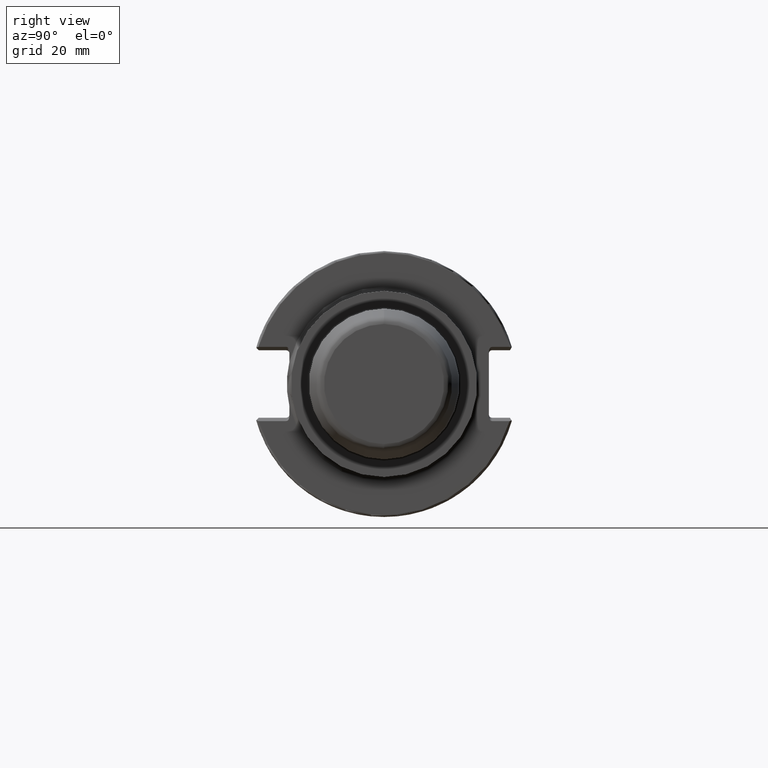
[diagram: clean part render]
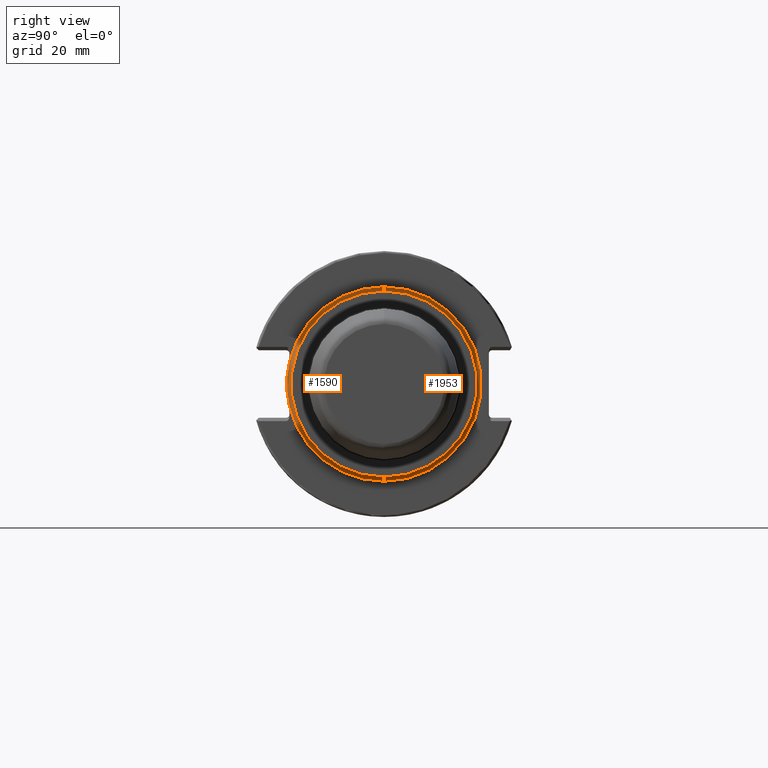
[diagram: same view with one multi-face feature highlighted, each face labeled with its STEP entity id]
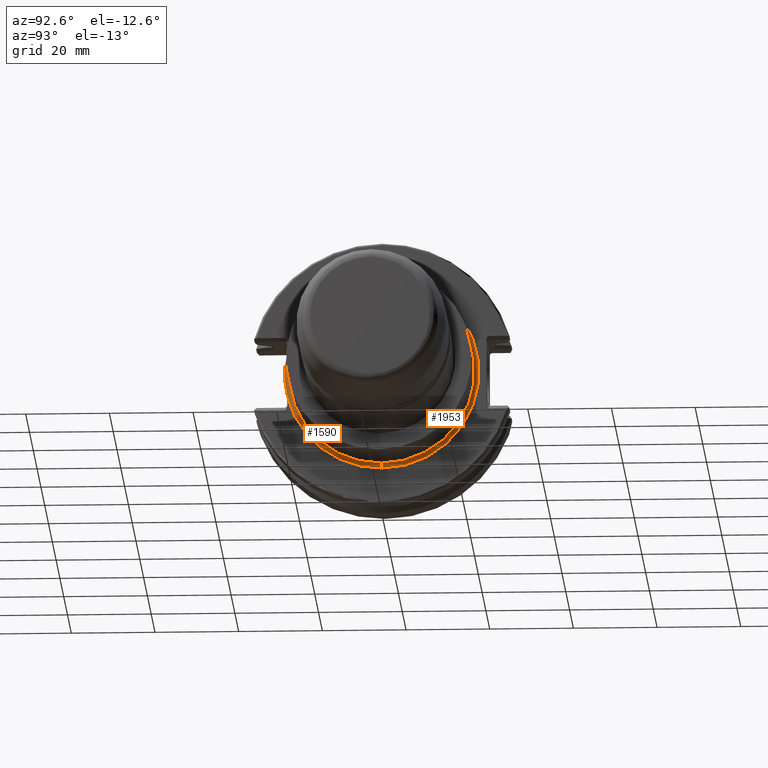
[diagram: same view with one multi-face feature highlighted, each face labeled with its STEP entity id]
A machine part, right view. The highlighted faces form ONE feature: a constant-radius fillet chain: 2 tangent blend faces with common blend radius 1 mm. The faces share edges in the B-rep.
A second angle (auxiliary view) of the same feature is appended — it is thin or edge-on in the first view.
Their STEP definitions:
[1] entity #1953 (Torus):
#292 = EDGE_LOOP ( 'NONE', ( #452, #3899, #1750, #579 ) ) ;
#448 = TOROIDAL_SURFACE ( 'NONE', #4988, 23.22500000000000100, 1.000000000000000900 ) ;
#452 = ORIENTED_EDGE ( 'NONE', *, *, #4546, .F. ) ;
#468 = CARTESIAN_POINT ( 'NONE',  ( 87.29999999999999700, 0.0000000000000000000, 23.22500000000000100 ) ) ;
#538 = AXIS2_PLACEMENT_3D ( 'NONE', #829, #3572, #1236 ) ;
#579 = ORIENTED_EDGE ( 'NONE', *, *, #4056, .T. ) ;
#745 = AXIS2_PLACEMENT_3D ( 'NONE', #3753, #1410, #4136 ) ;
#760 = VERTEX_POINT ( 'NONE', #4382 ) ;
#803 = VERTEX_POINT ( 'NONE', #1672 ) ;
#813 = CARTESIAN_POINT ( 'NONE',  ( 88.29999999999999700, 0.0000000000000000000, 0.0000000000000000000 ) ) ;
#829 = CARTESIAN_POINT ( 'NONE',  ( 88.29999999999999700, 0.0000000000000000000, 0.0000000000000000000 ) ) ;
#1117 = CARTESIAN_POINT ( 'NONE',  ( 88.29999999999999700, 2.783009851062360400E-015, -22.22500000000000100 ) ) ;
#1236 = DIRECTION ( 'NONE',  ( 0.0000000000000000000, 0.0000000000000000000, 1.000000000000000000 ) ) ;
#1410 = DIRECTION ( 'NONE',  ( -1.000000000000000000, -0.0000000000000000000, -0.0000000000000000000 ) ) ;
#1547 = DIRECTION ( 'NONE',  ( 0.0000000000000000000, -1.000000000000000000, 0.0000000000000000000 ) ) ;
#1568 = DIRECTION ( 'NONE',  ( -0.0000000000000000000, 1.000000000000000000, 1.224646799147353200E-016 ) ) ;
#1672 = CARTESIAN_POINT ( 'NONE',  ( 88.29999999999999700, 0.0000000000000000000, 22.22500000000000100 ) ) ;
#1750 = ORIENTED_EDGE ( 'NONE', *, *, #3148, .T. ) ;
#1953 = ADVANCED_FACE ( 'NONE', ( #4487 ), #448, .F. ) ;
#2005 = DIRECTION ( 'NONE',  ( 0.0000000000000000000, 0.0000000000000000000, 1.000000000000000000 ) ) ;
#2682 = VERTEX_POINT ( 'NONE', #1117 ) ;
#2771 = CIRCLE ( 'NONE', #745, 23.22500000000000100 ) ;
#2884 = CIRCLE ( 'NONE', #538, 22.22500000000000100 ) ;
#2949 = EDGE_CURVE ( 'NONE', #3722, #760, #2771, .T. ) ;
#3093 = AXIS2_PLACEMENT_3D ( 'NONE', #3915, #1568, #4293 ) ;
#3126 = AXIS2_PLACEMENT_3D ( 'NONE', #3884, #1547, #4276 ) ;
#3148 = EDGE_CURVE ( 'NONE', #3722, #803, #4892, .T. ) ;
#3479 = CIRCLE ( 'NONE', #3093, 1.000000000000000900 ) ;
#3561 = DIRECTION ( 'NONE',  ( -1.000000000000000000, -0.0000000000000000000, -0.0000000000000000000 ) ) ;
#3572 = DIRECTION ( 'NONE',  ( -1.000000000000000000, -0.0000000000000000000, -0.0000000000000000000 ) ) ;
#3722 = VERTEX_POINT ( 'NONE', #468 ) ;
#3753 = CARTESIAN_POINT ( 'NONE',  ( 87.29999999999999700, 0.0000000000000000000, 0.0000000000000000000 ) ) ;
#3884 = CARTESIAN_POINT ( 'NONE',  ( 88.29999999999999700, 0.0000000000000000000, 23.22500000000000100 ) ) ;
#3899 = ORIENTED_EDGE ( 'NONE', *, *, #2949, .F. ) ;
#3915 = CARTESIAN_POINT ( 'NONE',  ( 88.29999999999999700, 2.844242191019728400E-015, -23.22500000000000100 ) ) ;
#4056 = EDGE_CURVE ( 'NONE', #803, #2682, #2884, .T. ) ;
#4136 = DIRECTION ( 'NONE',  ( 0.0000000000000000000, 0.0000000000000000000, 1.000000000000000000 ) ) ;
#4276 = DIRECTION ( 'NONE',  ( 0.0000000000000000000, 0.0000000000000000000, -1.000000000000000000 ) ) ;
#4293 = DIRECTION ( 'NONE',  ( 0.0000000000000000000, -1.224646799147353500E-016, 1.000000000000000000 ) ) ;
#4382 = CARTESIAN_POINT ( 'NONE',  ( 87.29999999999999700, 2.844242191019728400E-015, -23.22500000000000100 ) ) ;
#4487 = FACE_OUTER_BOUND ( 'NONE', #292, .T. ) ;
#4546 = EDGE_CURVE ( 'NONE', #760, #2682, #3479, .T. ) ;
#4892 = CIRCLE ( 'NONE', #3126, 1.000000000000000900 ) ;
#4988 = AXIS2_PLACEMENT_3D ( 'NONE', #813, #3561, #2005 ) ;
[2] entity #1590 (Torus):
#33 = DIRECTION ( 'NONE',  ( 0.0000000000000000000, 0.0000000000000000000, 1.000000000000000000 ) ) ;
#110 = CIRCLE ( 'NONE', #2153, 23.22500000000000100 ) ;
#185 = EDGE_CURVE ( 'NONE', #3725, #3253, #110, .T. ) ;
#432 = DIRECTION ( 'NONE',  ( -1.000000000000000000, -0.0000000000000000000, -0.0000000000000000000 ) ) ;
#468 = CARTESIAN_POINT ( 'NONE',  ( 87.29999999999999700, 0.0000000000000000000, 23.22500000000000100 ) ) ;
#494 = CARTESIAN_POINT ( 'NONE',  ( 88.29999999999999700, 0.0000000000000000000, 0.0000000000000000000 ) ) ;
#521 = CARTESIAN_POINT ( 'NONE',  ( 88.29999999999999700, 0.0000000000000000000, 0.0000000000000000000 ) ) ;
#642 = FACE_OUTER_BOUND ( 'NONE', #3916, .T. ) ;
#760 = VERTEX_POINT ( 'NONE', #4382 ) ;
#803 = VERTEX_POINT ( 'NONE', #1672 ) ;
#896 = DIRECTION ( 'NONE',  ( 0.0000000000000000000, 0.0000000000000000000, 1.000000000000000000 ) ) ;
#929 = DIRECTION ( 'NONE',  ( 0.0000000000000000000, 0.0000000000000000000, 1.000000000000000000 ) ) ;
#1117 = CARTESIAN_POINT ( 'NONE',  ( 88.29999999999999700, 2.783009851062360400E-015, -22.22500000000000100 ) ) ;
#1170 = CIRCLE ( 'NONE', #1908, 23.22500000000000100 ) ;
#1547 = DIRECTION ( 'NONE',  ( 0.0000000000000000000, -1.000000000000000000, 0.0000000000000000000 ) ) ;
#1568 = DIRECTION ( 'NONE',  ( -0.0000000000000000000, 1.000000000000000000, 1.224646799147353200E-016 ) ) ;
#1590 = ADVANCED_FACE ( 'NONE', ( #642 ), #4554, .F. ) ;
#1606 = DIRECTION ( 'NONE',  ( -1.000000000000000000, -0.0000000000000000000, -0.0000000000000000000 ) ) ;
#1622 = ORIENTED_EDGE ( 'NONE', *, *, #3332, .T. ) ;
#1655 = ORIENTED_EDGE ( 'NONE', *, *, #4546, .T. ) ;
#1672 = CARTESIAN_POINT ( 'NONE',  ( 88.29999999999999700, 0.0000000000000000000, 22.22500000000000100 ) ) ;
#1879 = ORIENTED_EDGE ( 'NONE', *, *, #185, .F. ) ;
#1908 = AXIS2_PLACEMENT_3D ( 'NONE', #3936, #1606, #4329 ) ;
#2153 = AXIS2_PLACEMENT_3D ( 'NONE', #4724, #2390, #33 ) ;
#2201 = CIRCLE ( 'NONE', #3539, 22.22500000000000100 ) ;
#2339 = DIRECTION ( 'NONE',  ( -1.000000000000000000, -0.0000000000000000000, -0.0000000000000000000 ) ) ;
#2390 = DIRECTION ( 'NONE',  ( -1.000000000000000000, -0.0000000000000000000, -0.0000000000000000000 ) ) ;
#2682 = VERTEX_POINT ( 'NONE', #1117 ) ;
#2782 = EDGE_CURVE ( 'NONE', #3253, #3722, #1170, .T. ) ;
#2791 = CARTESIAN_POINT ( 'NONE',  ( 87.29999999999999700, 0.0000000000000000000, 0.0000000000000000000 ) ) ;
#2965 = ORIENTED_EDGE ( 'NONE', *, *, #2782, .F. ) ;
#3093 = AXIS2_PLACEMENT_3D ( 'NONE', #3915, #1568, #4293 ) ;
#3126 = AXIS2_PLACEMENT_3D ( 'NONE', #3884, #1547, #4276 ) ;
#3148 = EDGE_CURVE ( 'NONE', #3722, #803, #4892, .T. ) ;
#3188 = DIRECTION ( 'NONE',  ( 0.0000000000000000000, 0.0000000000000000000, 1.000000000000000000 ) ) ;
#3253 = VERTEX_POINT ( 'NONE', #3975 ) ;
#3270 = AXIS2_PLACEMENT_3D ( 'NONE', #494, #2339, #896 ) ;
#3277 = DIRECTION ( 'NONE',  ( -1.000000000000000000, -0.0000000000000000000, -0.0000000000000000000 ) ) ;
#3332 = EDGE_CURVE ( 'NONE', #2682, #803, #2201, .T. ) ;
#3479 = CIRCLE ( 'NONE', #3093, 1.000000000000000900 ) ;
#3539 = AXIS2_PLACEMENT_3D ( 'NONE', #521, #3277, #929 ) ;
#3609 = ORIENTED_EDGE ( 'NONE', *, *, #4658, .F. ) ;
#3722 = VERTEX_POINT ( 'NONE', #468 ) ;
#3725 = VERTEX_POINT ( 'NONE', #3988 ) ;
#3884 = CARTESIAN_POINT ( 'NONE',  ( 88.29999999999999700, 0.0000000000000000000, 23.22500000000000100 ) ) ;
#3915 = CARTESIAN_POINT ( 'NONE',  ( 88.29999999999999700, 2.844242191019728400E-015, -23.22500000000000100 ) ) ;
#3916 = EDGE_LOOP ( 'NONE', ( #3609, #1655, #1622, #4739, #2965, #1879 ) ) ;
#3936 = CARTESIAN_POINT ( 'NONE',  ( 87.29999999999999700, 0.0000000000000000000, 0.0000000000000000000 ) ) ;
#3975 = CARTESIAN_POINT ( 'NONE',  ( 87.30000000000001100, -22.60000000000000100, 5.351693657151920500 ) ) ;
#3988 = CARTESIAN_POINT ( 'NONE',  ( 87.29999999999999700, -22.60000000000000100, -5.351693657151913400 ) ) ;
#4276 = DIRECTION ( 'NONE',  ( 0.0000000000000000000, 0.0000000000000000000, -1.000000000000000000 ) ) ;
#4293 = DIRECTION ( 'NONE',  ( 0.0000000000000000000, -1.224646799147353500E-016, 1.000000000000000000 ) ) ;
#4329 = DIRECTION ( 'NONE',  ( 0.0000000000000000000, 0.0000000000000000000, 1.000000000000000000 ) ) ;
#4382 = CARTESIAN_POINT ( 'NONE',  ( 87.29999999999999700, 2.844242191019728400E-015, -23.22500000000000100 ) ) ;
#4546 = EDGE_CURVE ( 'NONE', #760, #2682, #3479, .T. ) ;
#4554 = TOROIDAL_SURFACE ( 'NONE', #3270, 23.22500000000000100, 1.000000000000000900 ) ;
#4658 = EDGE_CURVE ( 'NONE', #760, #3725, #5067, .T. ) ;
#4724 = CARTESIAN_POINT ( 'NONE',  ( 87.29999999999999700, 0.0000000000000000000, 0.0000000000000000000 ) ) ;
#4739 = ORIENTED_EDGE ( 'NONE', *, *, #3148, .F. ) ;
#4892 = CIRCLE ( 'NONE', #3126, 1.000000000000000900 ) ;
#4903 = AXIS2_PLACEMENT_3D ( 'NONE', #2791, #432, #3188 ) ;
#5067 = CIRCLE ( 'NONE', #4903, 23.22500000000000100 ) ;